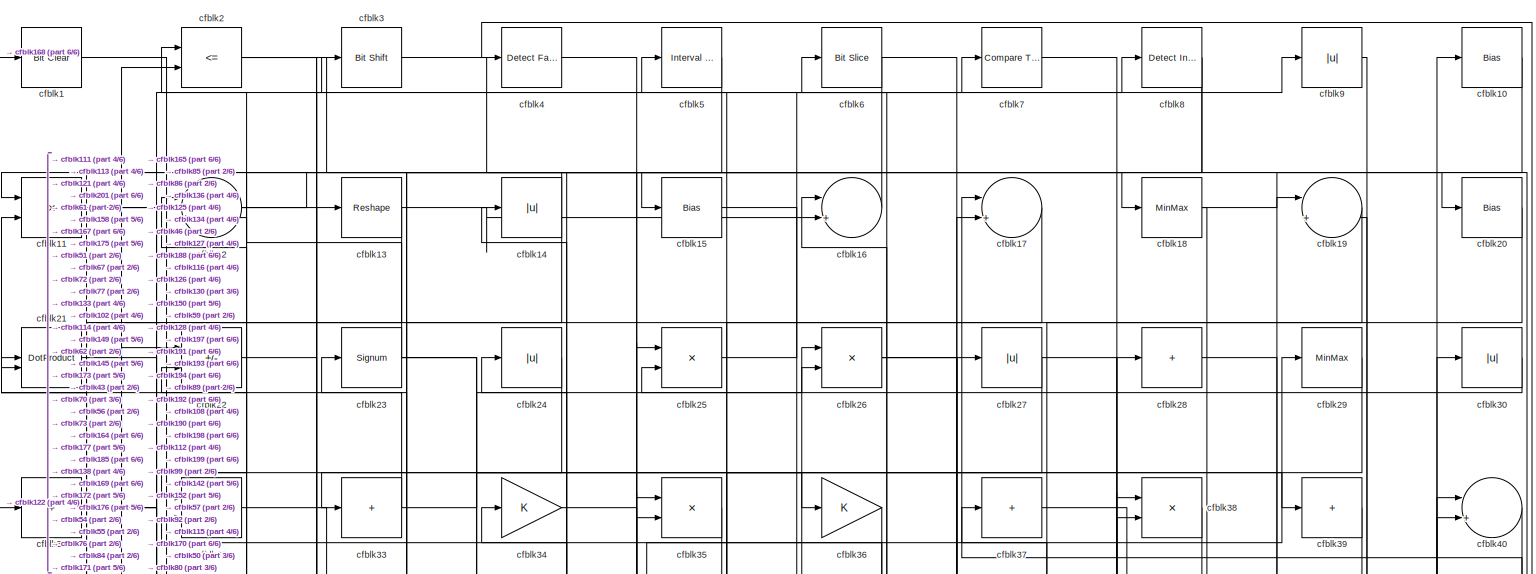
[diagram: root canvas - part 1/6, full width, top band]
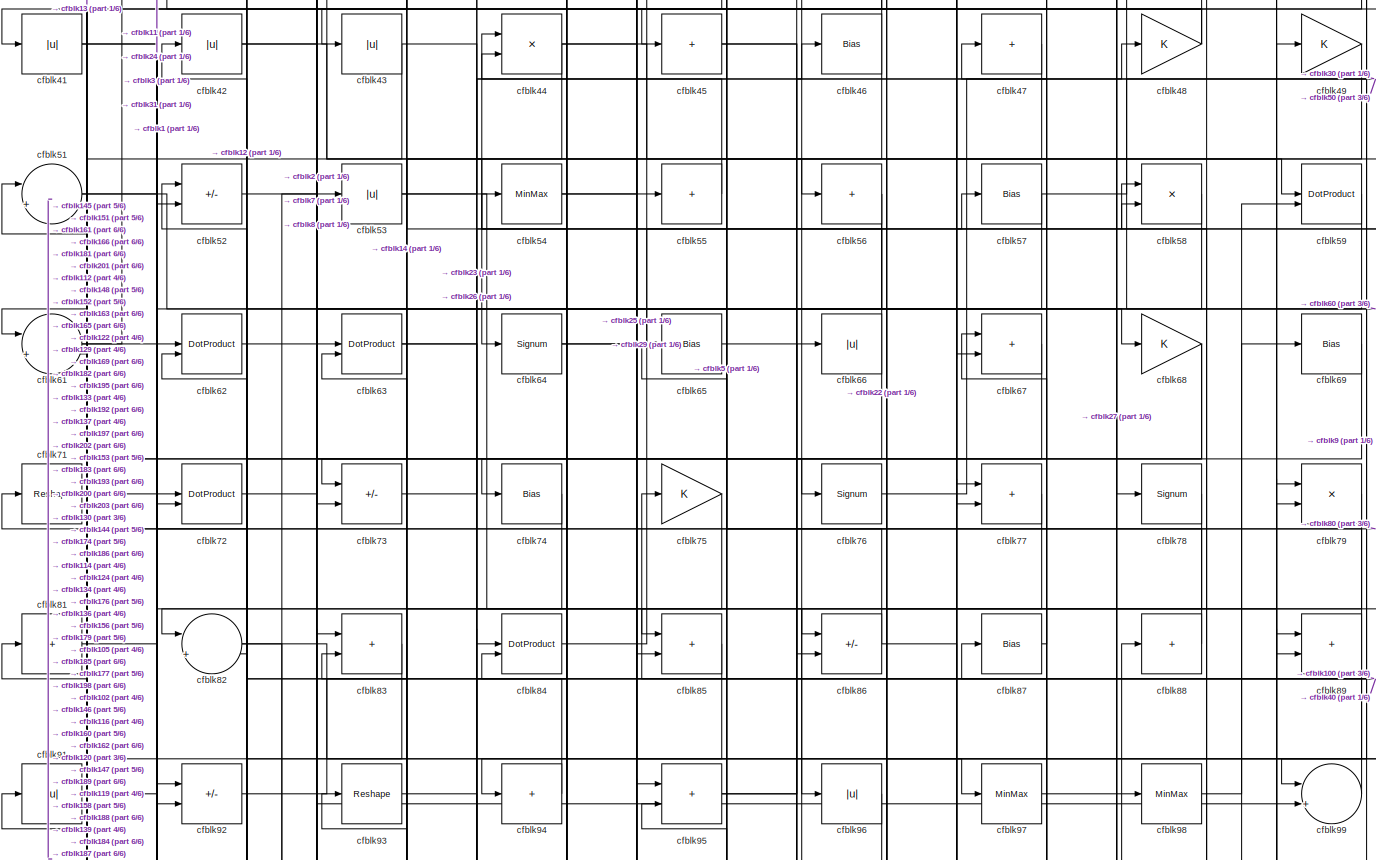
[diagram: root canvas - part 2/6, full width, middle band]
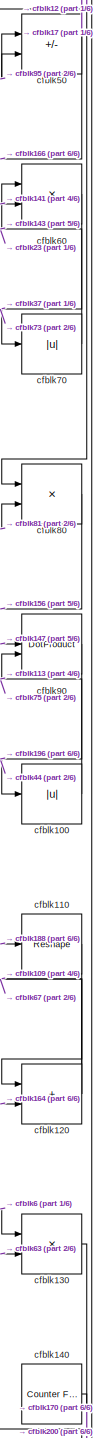
[diagram: root canvas - part 3/6, middle right region]
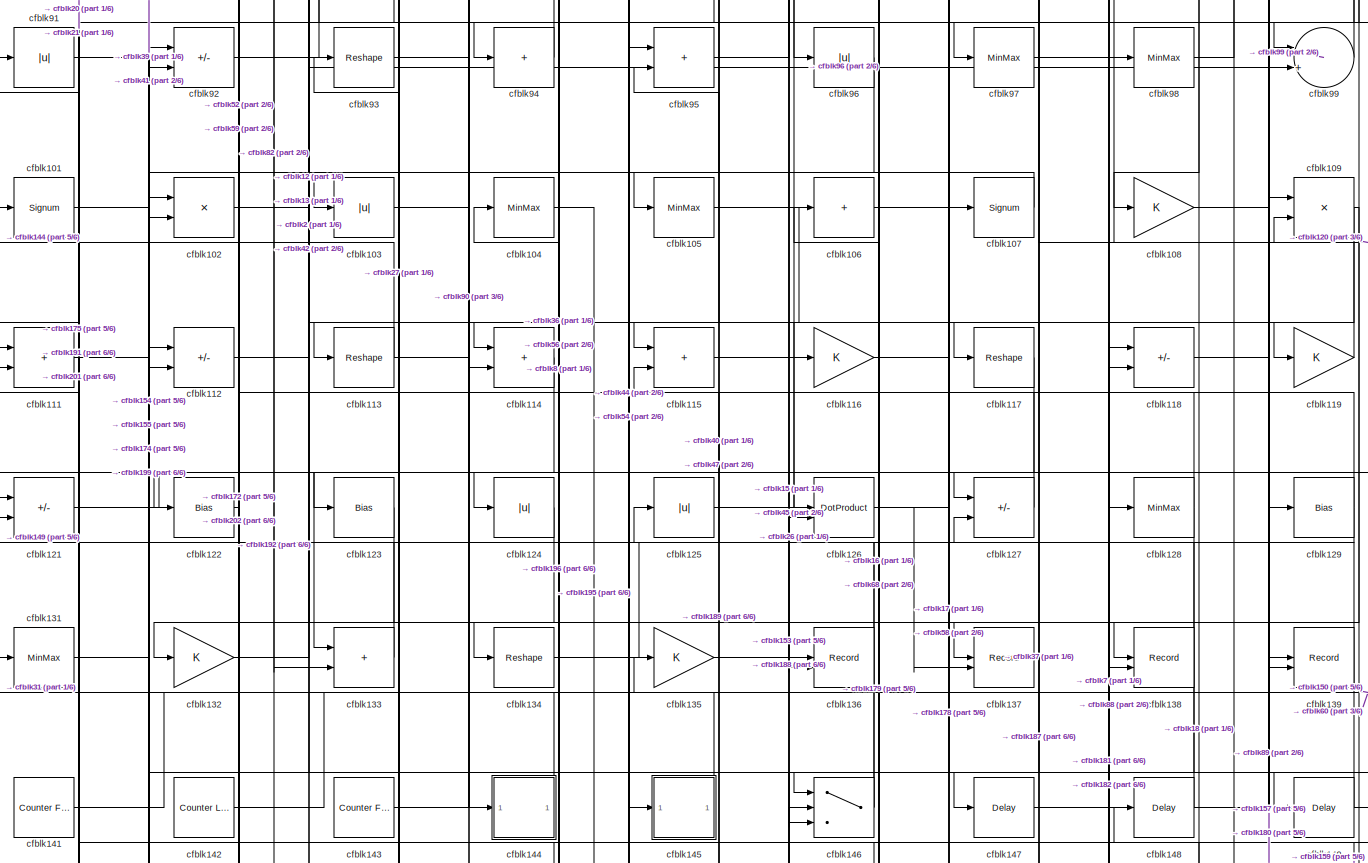
[diagram: root canvas - part 4/6, full width, middle band]
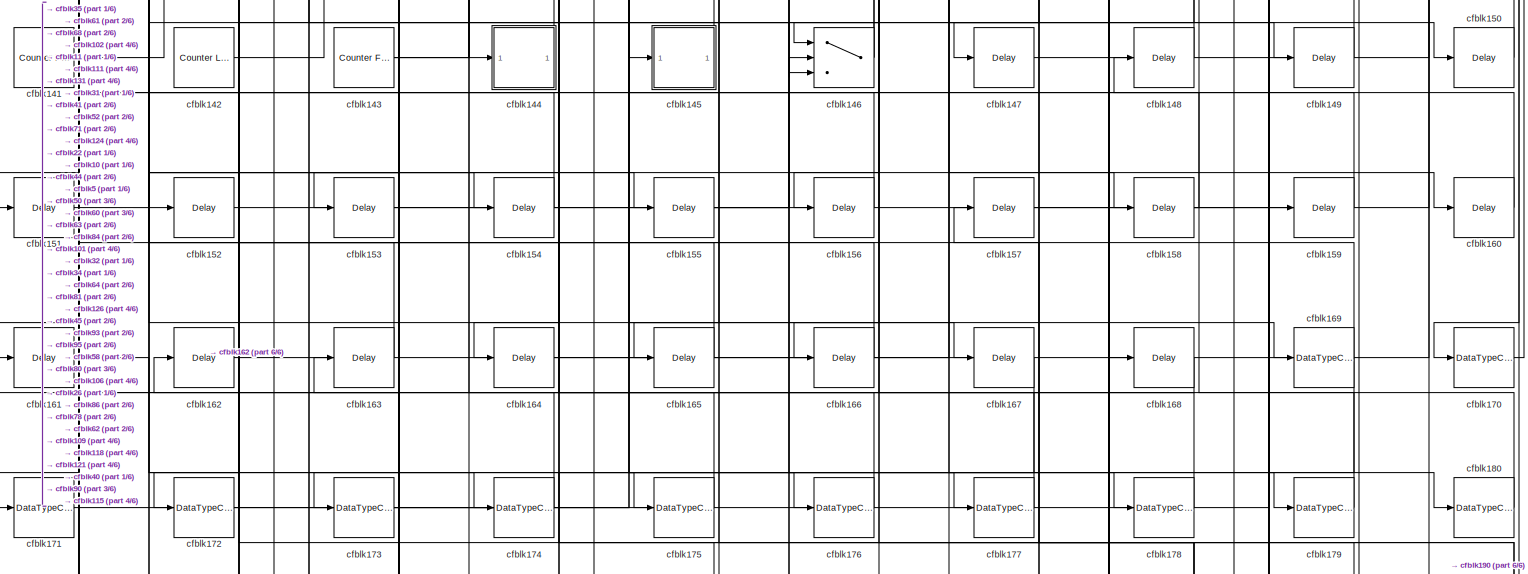
[diagram: root canvas - part 5/6, full width, bottom band]
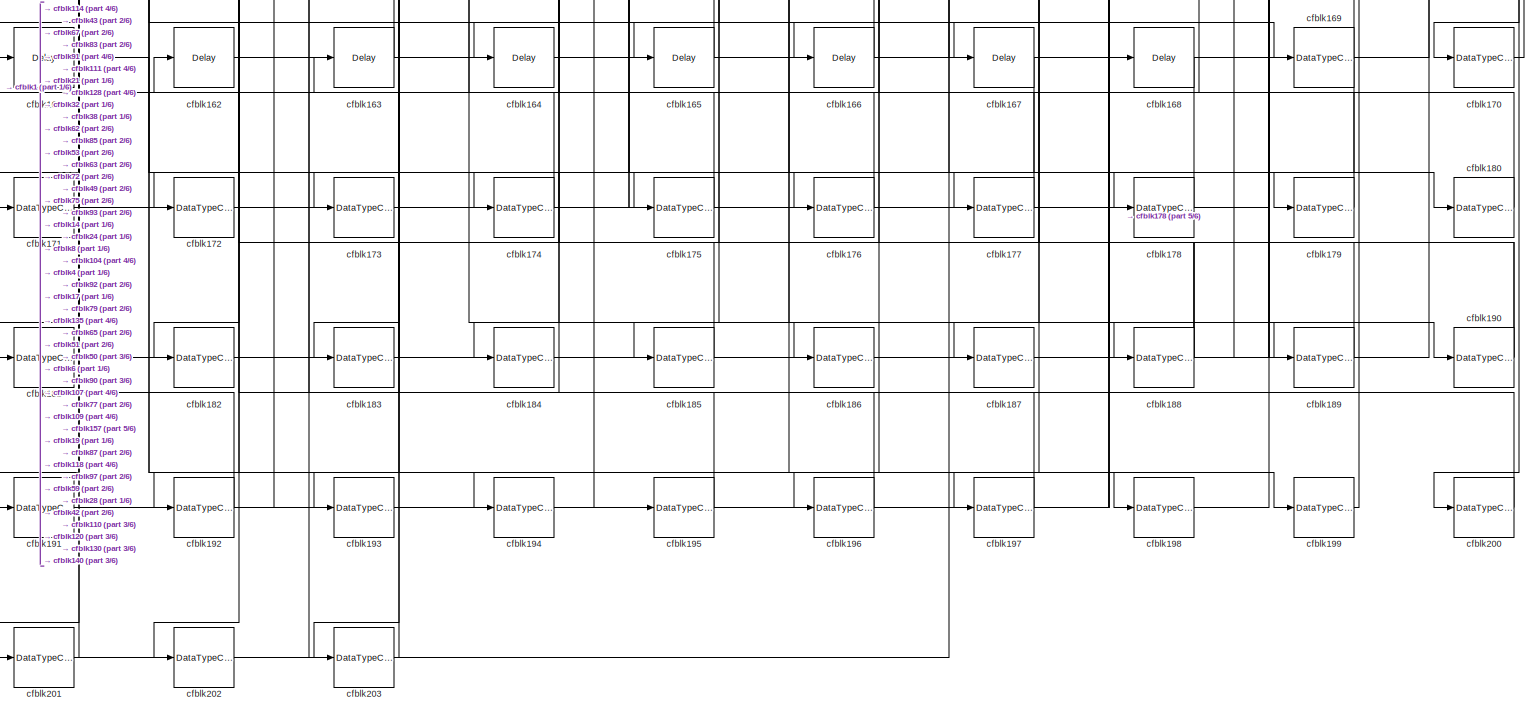
[diagram: root canvas - part 6/6, full width, bottom band]
MODEL slx_52d955ae7c32
KIND model
CONFIG AbsTol = auto
CONFIG EnableMultiTasking = off
CONFIG FixedStep = auto
CONFIG MaxStep = auto
CONFIG MinStep = auto
CONFIG RelTol = 1e-3
CONFIG SampleTimeConstraint = Unconstrained
CONFIG SolverName = VariableStepAuto
CONFIG StartTime = 0.0
CONFIG StopTime = 10.0
BLOCK [Reference] cfblk1  REF=simulink/Logic and Bit
Operations/Bit Clear
  LibrarySourceBlock = hdlsllib/Logic and Bit\nOperations/Bit Clear
  SourceBlock = simulink/Logic and Bit\nOperations/Bit Clear
  SourceType = Bit Clear
BLOCK [Bias] cfblk10
  Bias = 0.0
  SaturateOnIntegerOverflow = off
BLOCK [Abs] cfblk100
  SaturateOnIntegerOverflow = off
BLOCK [Signum] cfblk101
BLOCK [Product] cfblk102
  Inputs = */
  RndMeth = Zero
  SaturateOnIntegerOverflow = on
BLOCK [Abs] cfblk103
  SaturateOnIntegerOverflow = off
BLOCK [MinMax] cfblk104
BLOCK [MinMax] cfblk105
BLOCK [Sum] cfblk106
  IconShape = rectangular
  Inputs = +
BLOCK [Signum] cfblk107
BLOCK [Gain] cfblk108
BLOCK [Product] cfblk109
  Inputs = */
  RndMeth = Zero
  SaturateOnIntegerOverflow = on
BLOCK [Product] cfblk11
  Inputs = */
  RndMeth = Zero
  SaturateOnIntegerOverflow = on
BLOCK [Reshape] cfblk110
BLOCK [Sum] cfblk111
  IconShape = rectangular
BLOCK [Sum] cfblk112
  IconShape = rectangular
  Inputs = +-
BLOCK [Reshape] cfblk113
BLOCK [Sum] cfblk114
  IconShape = rectangular
BLOCK [Sum] cfblk115
  IconShape = rectangular
BLOCK [Gain] cfblk116
BLOCK [Reshape] cfblk117
BLOCK [Sum] cfblk118
  IconShape = rectangular
  Inputs = +-
BLOCK [Gain] cfblk119
BLOCK [Sum] cfblk12
  Inputs = |++
BLOCK [Sum] cfblk120
  IconShape = rectangular
BLOCK [Sum] cfblk121
  IconShape = rectangular
  Inputs = +-
BLOCK [Bias] cfblk122
  Bias = 0.0
  SaturateOnIntegerOverflow = off
BLOCK [Bias] cfblk123
  Bias = 0.0
  SaturateOnIntegerOverflow = off
BLOCK [Abs] cfblk124
  SaturateOnIntegerOverflow = off
BLOCK [Abs] cfblk125
  SaturateOnIntegerOverflow = off
BLOCK [DotProduct] cfblk126
  OutDataTypeStr = Inherit: Inherit via internal rule
BLOCK [Sum] cfblk127
  IconShape = rectangular
  Inputs = +-
BLOCK [MinMax] cfblk128
BLOCK [Bias] cfblk129
  Bias = 0.0
  SaturateOnIntegerOverflow = off
BLOCK [Reshape] cfblk13
BLOCK [Product] cfblk130
  Inputs = */
  RndMeth = Zero
  SaturateOnIntegerOverflow = on
BLOCK [MinMax] cfblk131
BLOCK [Gain] cfblk132
BLOCK [Sum] cfblk133
  IconShape = rectangular
BLOCK [Reshape] cfblk134
BLOCK [Gain] cfblk135
BLOCK [Record] cfblk136
  CompatibilityTag = XY
  FileSettingsInternal = {"entries":[{"content":{"excelSettings":{"content":{},"type":"Streamout.ExcelSettings"}},"type":"Streamout.FileSettingStorage","uuid":""}],"packageUris":["http:\/\/schema.mathworks.com\/mf0\/streamout_blocks\/R2020a"],"version":"1.0"}  <repeated x4 — deduplicated; at blocks: cfblk136, cfblk137, cfblk138, cfblk139>
  Layout = [1 1]
  SignalsInternal = {"entries":[{"content":{"signals":[{"content":{"blockPath":[],"dimensions":[1],"domain":"","lineColor":"#a2142f","plots":[1],"port":1,"signalID":6125,"signalName":"XY Graph:1"},"type":"RecordBlkView.Signal","uuid":""},{"content":{"blockPath":[],"dimensions":[1],"domain":"","lineColor":"#139fff","plots":[1],"port":2,"signalID":6128,"signalName":"XY Graph:2"},"type":"RecordBlkView.Signal","uuid":""}...<+146ch>
  VisualizationBindings = {"xyplotplugin":{"info":[{"series":[{"bindingParametersList":[{"parameter":"X-Axis","signalID":6125,"signalName":"XY Graph:1"},{"parameter":"Y-Axis","signalID":6128,"signalName":"XY Graph:2"}],"seriesID":37174}],"subplotID":1}]}}
  st = -1
BLOCK [Record] cfblk137
  CompatibilityTag = XY
  Layout = [1 1]
  SignalsInternal = {"entries":[{"content":{"signals":[{"content":{"blockPath":[],"dimensions":[1],"domain":"","lineColor":"#a2142f","plots":[1],"port":1,"signalID":6133,"signalName":"XY Graph:1"},"type":"RecordBlkView.Signal","uuid":""},{"content":{"blockPath":[],"dimensions":[1],"domain":"","lineColor":"#139fff","plots":[1],"port":2,"signalID":6136,"signalName":"XY Graph:2"},"type":"RecordBlkView.Signal","uuid":""}...<+146ch>
  VisualizationBindings = {"xyplotplugin":{"info":[{"series":[{"bindingParametersList":[{"parameter":"X-Axis","signalID":6133,"signalName":"XY Graph:1"},{"parameter":"Y-Axis","signalID":6136,"signalName":"XY Graph:2"}],"seriesID":49207}],"subplotID":1}]}}
  st = -1
BLOCK [Record] cfblk138
  CompatibilityTag = XY
  Layout = [1 1]
  SignalsInternal = {"entries":[{"content":{"signals":[{"content":{"blockPath":[],"dimensions":[1],"domain":"","lineColor":"#a2142f","plots":[1],"port":1,"signalID":6141,"signalName":"XY Graph:1"},"type":"RecordBlkView.Signal","uuid":""},{"content":{"blockPath":[],"dimensions":[1],"domain":"","lineColor":"#139fff","plots":[1],"port":2,"signalID":6144,"signalName":"XY Graph:2"},"type":"RecordBlkView.Signal","uuid":""}...<+146ch>
  VisualizationBindings = {"xyplotplugin":{"info":[{"series":[{"bindingParametersList":[{"parameter":"X-Axis","signalID":6141,"signalName":"XY Graph:1"},{"parameter":"Y-Axis","signalID":6144,"signalName":"XY Graph:2"}],"seriesID":27354}],"subplotID":1}]}}
  st = -1
BLOCK [Record] cfblk139
  CompatibilityTag = XY
  Layout = [1 1]
  SignalsInternal = {"entries":[{"content":{"signals":[{"content":{"blockPath":[],"dimensions":[1],"domain":"","lineColor":"#a2142f","plots":[1],"port":1,"signalID":6149,"signalName":"XY Graph:1"},"type":"RecordBlkView.Signal","uuid":""},{"content":{"blockPath":[],"dimensions":[1],"domain":"","lineColor":"#139fff","plots":[1],"port":2,"signalID":6152,"signalName":"XY Graph:2"},"type":"RecordBlkView.Signal","uuid":""}...<+146ch>
  VisualizationBindings = {"xyplotplugin":{"info":[{"series":[{"bindingParametersList":[{"parameter":"X-Axis","signalID":6149,"signalName":"XY Graph:1"},{"parameter":"Y-Axis","signalID":6152,"signalName":"XY Graph:2"}],"seriesID":25762}],"subplotID":1}]}}
  st = -1
BLOCK [Abs] cfblk14
  SaturateOnIntegerOverflow = off
BLOCK [Reference] cfblk140  REF=hdlsllib/Sources/Counter
Free-Running
  SourceBlock = hdlsllib/Sources/Counter\nFree-Running
  SourceType = Counter Free-Running
BLOCK [Reference] cfblk141  REF=hdlsllib/Sources/Counter
Free-Running
  SourceBlock = hdlsllib/Sources/Counter\nFree-Running
  SourceType = Counter Free-Running
BLOCK [Reference] cfblk142  REF=hdlsllib/Sources/Counter
Limited
  SourceBlock = hdlsllib/Sources/Counter\nLimited
  SourceType = Counter Limited
BLOCK [Reference] cfblk143  REF=hdlsllib/Sources/Counter
Free-Running
  SourceBlock = hdlsllib/Sources/Counter\nFree-Running
  SourceType = Counter Free-Running
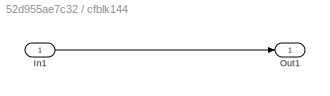
BLOCK [SubSystem] cfblk144
  LibrarySourceBlock = hdlsllib/Ports &\nSubsystems/Subsystem
BLOCK [Inport] cfblk144/In1
BLOCK [Outport] cfblk144/Out1
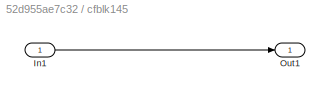
BLOCK [SubSystem] cfblk145
  LibrarySourceBlock = hdlsllib/Ports &\nSubsystems/Subsystem
BLOCK [Inport] cfblk145/In1
BLOCK [Outport] cfblk145/Out1
BLOCK [Switch] cfblk146
  InputSameDT = off
  SaturateOnIntegerOverflow = off
BLOCK [Delay] cfblk147
  InputPortMap = u0
  SampleTime = 1
BLOCK [Delay] cfblk148
  InputPortMap = u0
  SampleTime = 1
BLOCK [Delay] cfblk149
  InputPortMap = u0
  SampleTime = 1
BLOCK [Bias] cfblk15
  Bias = 0.0
  SaturateOnIntegerOverflow = off
BLOCK [Delay] cfblk150
  InputPortMap = u0
  SampleTime = 1
BLOCK [Delay] cfblk151
  InputPortMap = u0
  SampleTime = 1
BLOCK [Delay] cfblk152
  InputPortMap = u0
  SampleTime = 1
BLOCK [Delay] cfblk153
  InputPortMap = u0
  SampleTime = 1
BLOCK [Delay] cfblk154
  InputPortMap = u0
  SampleTime = 1
BLOCK [Delay] cfblk155
  InputPortMap = u0
  SampleTime = 1
BLOCK [Delay] cfblk156
  InputPortMap = u0
  SampleTime = 1
BLOCK [Delay] cfblk157
  InputPortMap = u0
  SampleTime = 1
BLOCK [Delay] cfblk158
  InputPortMap = u0
  SampleTime = 1
BLOCK [Delay] cfblk159
  InputPortMap = u0
  SampleTime = 1
BLOCK [Sum] cfblk16
  Inputs = |++
BLOCK [Delay] cfblk160
  InputPortMap = u0
  SampleTime = 1
BLOCK [Delay] cfblk161
  InputPortMap = u0
  SampleTime = 1
BLOCK [Delay] cfblk162
  InputPortMap = u0
  SampleTime = 1
BLOCK [Delay] cfblk163
  InputPortMap = u0
  SampleTime = 1
BLOCK [Delay] cfblk164
  InputPortMap = u0
  SampleTime = 1
BLOCK [Delay] cfblk165
  InputPortMap = u0
  SampleTime = 1
BLOCK [Delay] cfblk166
  InputPortMap = u0
  SampleTime = 1
BLOCK [Delay] cfblk167
  InputPortMap = u0
  SampleTime = 1
BLOCK [Delay] cfblk168
  InputPortMap = u0
  SampleTime = 1
BLOCK [DataTypeConversion] cfblk169
  RndMeth = Floor
  SaturateOnIntegerOverflow = off
BLOCK [Sum] cfblk17
  Inputs = |++
BLOCK [DataTypeConversion] cfblk170
  OutDataTypeStr = uint8
  RndMeth = Floor
  SaturateOnIntegerOverflow = off
BLOCK [DataTypeConversion] cfblk171
  OutDataTypeStr = uint8
  RndMeth = Floor
  SaturateOnIntegerOverflow = off
BLOCK [DataTypeConversion] cfblk172
  OutDataTypeStr = uint8
  RndMeth = Floor
  SaturateOnIntegerOverflow = off
BLOCK [DataTypeConversion] cfblk173
  OutDataTypeStr = uint8
  RndMeth = Floor
  SaturateOnIntegerOverflow = off
BLOCK [DataTypeConversion] cfblk174
  OutDataTypeStr = uint8
  RndMeth = Floor
  SaturateOnIntegerOverflow = off
BLOCK [DataTypeConversion] cfblk175
  OutDataTypeStr = uint8
  RndMeth = Floor
  SaturateOnIntegerOverflow = off
BLOCK [DataTypeConversion] cfblk176
  OutDataTypeStr = uint8
  RndMeth = Floor
  SaturateOnIntegerOverflow = off
BLOCK [DataTypeConversion] cfblk177
  OutDataTypeStr = uint8
  RndMeth = Floor
  SaturateOnIntegerOverflow = off
BLOCK [DataTypeConversion] cfblk178
  OutDataTypeStr = uint8
  RndMeth = Floor
  SaturateOnIntegerOverflow = off
BLOCK [DataTypeConversion] cfblk179
  OutDataTypeStr = uint8
  RndMeth = Floor
  SaturateOnIntegerOverflow = off
BLOCK [MinMax] cfblk18
BLOCK [DataTypeConversion] cfblk180
  OutDataTypeStr = uint8
  RndMeth = Floor
  SaturateOnIntegerOverflow = off
BLOCK [DataTypeConversion] cfblk181
  OutDataTypeStr = uint8
  RndMeth = Floor
  SaturateOnIntegerOverflow = off
BLOCK [DataTypeConversion] cfblk182
  OutDataTypeStr = uint8
  RndMeth = Floor
  SaturateOnIntegerOverflow = off
BLOCK [DataTypeConversion] cfblk183
  OutDataTypeStr = uint8
  RndMeth = Floor
  SaturateOnIntegerOverflow = off
BLOCK [DataTypeConversion] cfblk184
  OutDataTypeStr = uint8
  RndMeth = Floor
  SaturateOnIntegerOverflow = off
BLOCK [DataTypeConversion] cfblk185
  OutDataTypeStr = uint8
  RndMeth = Floor
  SaturateOnIntegerOverflow = off
BLOCK [DataTypeConversion] cfblk186
  OutDataTypeStr = uint8
  RndMeth = Floor
  SaturateOnIntegerOverflow = off
BLOCK [DataTypeConversion] cfblk187
  OutDataTypeStr = uint8
  RndMeth = Floor
  SaturateOnIntegerOverflow = off
BLOCK [DataTypeConversion] cfblk188
  RndMeth = Floor
  SaturateOnIntegerOverflow = off
BLOCK [DataTypeConversion] cfblk189
  OutDataTypeStr = uint8
  RndMeth = Floor
  SaturateOnIntegerOverflow = off
BLOCK [Sum] cfblk19
  Inputs = |++
BLOCK [DataTypeConversion] cfblk190
  RndMeth = Floor
  SaturateOnIntegerOverflow = off
BLOCK [DataTypeConversion] cfblk191
  OutDataTypeStr = uint8
  RndMeth = Floor
  SaturateOnIntegerOverflow = off
BLOCK [DataTypeConversion] cfblk192
  RndMeth = Floor
  SaturateOnIntegerOverflow = off
BLOCK [DataTypeConversion] cfblk193
  OutDataTypeStr = uint8
  RndMeth = Floor
  SaturateOnIntegerOverflow = off
BLOCK [DataTypeConversion] cfblk194
  OutDataTypeStr = uint8
  RndMeth = Floor
  SaturateOnIntegerOverflow = off
BLOCK [DataTypeConversion] cfblk195
  RndMeth = Floor
  SaturateOnIntegerOverflow = off
BLOCK [DataTypeConversion] cfblk196
  OutDataTypeStr = uint8
  RndMeth = Floor
  SaturateOnIntegerOverflow = off
BLOCK [DataTypeConversion] cfblk197
  OutDataTypeStr = uint8
  RndMeth = Floor
  SaturateOnIntegerOverflow = off
BLOCK [DataTypeConversion] cfblk198
  OutDataTypeStr = uint8
  RndMeth = Floor
  SaturateOnIntegerOverflow = off
BLOCK [DataTypeConversion] cfblk199
  OutDataTypeStr = uint8
  RndMeth = Floor
  SaturateOnIntegerOverflow = off
BLOCK [RelationalOperator] cfblk2
  InputSameDT = off
  Operator = <=
  OutDataTypeStr = boolean
BLOCK [Bias] cfblk20
  Bias = 0.0
  SaturateOnIntegerOverflow = off
BLOCK [DataTypeConversion] cfblk200
  OutDataTypeStr = uint8
  RndMeth = Floor
  SaturateOnIntegerOverflow = off
BLOCK [DataTypeConversion] cfblk201
  RndMeth = Floor
  SaturateOnIntegerOverflow = off
BLOCK [DataTypeConversion] cfblk202
  OutDataTypeStr = uint8
  RndMeth = Floor
  SaturateOnIntegerOverflow = off
BLOCK [DataTypeConversion] cfblk203
  OutDataTypeStr = uint8
  RndMeth = Floor
  SaturateOnIntegerOverflow = off
BLOCK [DotProduct] cfblk21
  OutDataTypeStr = Inherit: Inherit via internal rule
BLOCK [Sum] cfblk22
  IconShape = rectangular
  Inputs = +-
BLOCK [Signum] cfblk23
BLOCK [Abs] cfblk24
  SaturateOnIntegerOverflow = off
BLOCK [Product] cfblk25
  Inputs = */
  RndMeth = Zero
  SaturateOnIntegerOverflow = on
BLOCK [Product] cfblk26
  Inputs = */
  RndMeth = Zero
  SaturateOnIntegerOverflow = on
BLOCK [Abs] cfblk27
  SaturateOnIntegerOverflow = off
BLOCK [Sum] cfblk28
  IconShape = rectangular
  Inputs = +
BLOCK [MinMax] cfblk29
BLOCK [Reference] cfblk3  REF=hdlsllib/Logic and Bit
Operations/Bit Shift
  SourceBlock = hdlsllib/Logic and Bit\nOperations/Bit Shift
  SourceType = Bit Shift
BLOCK [Abs] cfblk30
  SaturateOnIntegerOverflow = off
BLOCK [Sum] cfblk31
  IconShape = rectangular
  Inputs = +
BLOCK [Product] cfblk32
  Inputs = */
  RndMeth = Zero
  SaturateOnIntegerOverflow = on
BLOCK [Sum] cfblk33
  IconShape = rectangular
  Inputs = +
BLOCK [Gain] cfblk34
BLOCK [Product] cfblk35
  Inputs = */
  RndMeth = Zero
  SaturateOnIntegerOverflow = on
BLOCK [Gain] cfblk36
BLOCK [Sum] cfblk37
  IconShape = rectangular
  Inputs = +
BLOCK [Product] cfblk38
  Inputs = */
  RndMeth = Zero
  SaturateOnIntegerOverflow = on
BLOCK [Sum] cfblk39
  IconShape = rectangular
  Inputs = +
BLOCK [Reference] cfblk4  REF=hdlsllib/Logic and Bit
Operations/Detect Fall
Negative
  SourceBlock = hdlsllib/Logic and Bit\nOperations/Detect Fall\nNegative
  SourceType = Detect Fall Negative
BLOCK [Sum] cfblk40
  Inputs = |++
BLOCK [Abs] cfblk41
  SaturateOnIntegerOverflow = off
BLOCK [Abs] cfblk42
  SaturateOnIntegerOverflow = off
BLOCK [Abs] cfblk43
  SaturateOnIntegerOverflow = off
BLOCK [Product] cfblk44
  Inputs = */
  RndMeth = Zero
  SaturateOnIntegerOverflow = on
BLOCK [Sum] cfblk45
  IconShape = rectangular
  Inputs = +
BLOCK [Bias] cfblk46
  Bias = 0.0
  SaturateOnIntegerOverflow = off
BLOCK [Sum] cfblk47
  IconShape = rectangular
  Inputs = +
BLOCK [Gain] cfblk48
BLOCK [Gain] cfblk49
BLOCK [Reference] cfblk5  REF=hdlsllib/Logic and Bit
Operations/Interval Test
  SourceBlock = hdlsllib/Logic and Bit\nOperations/Interval Test
  SourceType = Interval Test
BLOCK [Sum] cfblk50
  IconShape = rectangular
  Inputs = +-
BLOCK [Sum] cfblk51
  Inputs = |++
BLOCK [Sum] cfblk52
  IconShape = rectangular
  Inputs = +-
BLOCK [Abs] cfblk53
  SaturateOnIntegerOverflow = off
BLOCK [MinMax] cfblk54
BLOCK [Sum] cfblk55
  IconShape = rectangular
  Inputs = +
BLOCK [Sum] cfblk56
  IconShape = rectangular
  Inputs = +
BLOCK [Bias] cfblk57
  Bias = 0.0
  SaturateOnIntegerOverflow = off
BLOCK [Product] cfblk58
  Inputs = */
  RndMeth = Zero
  SaturateOnIntegerOverflow = on
BLOCK [DotProduct] cfblk59
  OutDataTypeStr = Inherit: Inherit via internal rule
BLOCK [Reference] cfblk6  REF=hdlsllib/Logic and Bit
Operations/Bit Slice
  SourceBlock = hdlsllib/Logic and Bit\nOperations/Bit Slice
  SourceType = Bit Slice
BLOCK [Product] cfblk60
  Inputs = */
  RndMeth = Zero
  SaturateOnIntegerOverflow = on
BLOCK [Sum] cfblk61
  Inputs = |++
BLOCK [DotProduct] cfblk62
  OutDataTypeStr = Inherit: Inherit via internal rule
BLOCK [DotProduct] cfblk63
  OutDataTypeStr = Inherit: Inherit via internal rule
BLOCK [Signum] cfblk64
BLOCK [Bias] cfblk65
  Bias = 0.0
  SaturateOnIntegerOverflow = off
BLOCK [Abs] cfblk66
  SaturateOnIntegerOverflow = off
BLOCK [Sum] cfblk67
  IconShape = rectangular
BLOCK [Gain] cfblk68
BLOCK [Bias] cfblk69
  Bias = 0.0
  SaturateOnIntegerOverflow = off
BLOCK [Reference] cfblk7  REF=hdlsllib/Logic and Bit
Operations/Compare
To Constant
  SourceBlock = hdlsllib/Logic and Bit\nOperations/Compare\nTo Constant
  SourceType = Compare To Constant
BLOCK [Abs] cfblk70
  SaturateOnIntegerOverflow = off
BLOCK [Reshape] cfblk71
BLOCK [DotProduct] cfblk72
  OutDataTypeStr = Inherit: Inherit via internal rule
BLOCK [Sum] cfblk73
  IconShape = rectangular
  Inputs = +-
BLOCK [Bias] cfblk74
  Bias = 0.0
  SaturateOnIntegerOverflow = off
BLOCK [Gain] cfblk75
BLOCK [Signum] cfblk76
BLOCK [Sum] cfblk77
  IconShape = rectangular
BLOCK [Signum] cfblk78
BLOCK [Product] cfblk79
  Inputs = */
  RndMeth = Zero
  SaturateOnIntegerOverflow = on
BLOCK [Reference] cfblk8  REF=simulink/Logic and Bit
Operations/Detect
Increase
  LibrarySourceBlock = hdlsllib/Logic and Bit\nOperations/Detect\nIncrease
  SourceBlock = simulink/Logic and Bit\nOperations/Detect\nIncrease
  SourceType = Detect Increase
BLOCK [Product] cfblk80
  Inputs = */
  RndMeth = Zero
  SaturateOnIntegerOverflow = on
BLOCK [Sum] cfblk81
  IconShape = rectangular
  Inputs = +
BLOCK [Sum] cfblk82
  Inputs = |++
BLOCK [Sum] cfblk83
  IconShape = rectangular
BLOCK [DotProduct] cfblk84
  OutDataTypeStr = Inherit: Inherit via internal rule
BLOCK [Sum] cfblk85
  IconShape = rectangular
BLOCK [Sum] cfblk86
  IconShape = rectangular
  Inputs = +-
BLOCK [Bias] cfblk87
  Bias = 0.0
  SaturateOnIntegerOverflow = off
BLOCK [Sum] cfblk88
  IconShape = rectangular
  Inputs = +
BLOCK [Sum] cfblk89
  IconShape = rectangular
BLOCK [Abs] cfblk9
  SaturateOnIntegerOverflow = off
BLOCK [DotProduct] cfblk90
  OutDataTypeStr = Inherit: Inherit via internal rule
BLOCK [Abs] cfblk91
  SaturateOnIntegerOverflow = off
BLOCK [Sum] cfblk92
  IconShape = rectangular
  Inputs = +-
BLOCK [Reshape] cfblk93
BLOCK [Sum] cfblk94
  IconShape = rectangular
  Inputs = +
BLOCK [Sum] cfblk95
  IconShape = rectangular
BLOCK [Abs] cfblk96
  SaturateOnIntegerOverflow = off
BLOCK [MinMax] cfblk97
BLOCK [MinMax] cfblk98
BLOCK [Sum] cfblk99
  Inputs = |++
LINE cfblk100:1 -> cfblk75:1
LINE cfblk101:1 -> cfblk155:1
LINE cfblk102:1 -> cfblk13:1
LINE cfblk103:1 -> cfblk119:1
LINE cfblk104:1 -> cfblk195:1
LINE cfblk105:1 -> cfblk117:1
LINE cfblk106:1 -> cfblk178:1
LINE cfblk107:1 -> cfblk103:1
LINE cfblk108:1 -> cfblk129:1
NET cfblk109:1 -> cfblk138:1, cfblk187:1
LINE cfblk10:1 -> cfblk32:1
LINE cfblk110:1 -> cfblk120:1
NET cfblk111:1 -> cfblk154:1, cfblk199:1
LINE cfblk112:1 -> cfblk99:2
NET cfblk113:1 -> cfblk21:1, cfblk90:2
LINE cfblk114:1 -> cfblk191:1
LINE cfblk115:1 -> cfblk126:1
NET cfblk116:1 -> cfblk17:2, cfblk58:1
LINE cfblk117:1 -> cfblk133:1
LINE cfblk118:1 -> cfblk180:1
LINE cfblk119:1 -> cfblk88:1
NET cfblk11:1 -> cfblk158:1, cfblk86:1
NET cfblk120:1 -> cfblk109:2, cfblk67:1
LINE cfblk121:1 -> cfblk123:1
LINE cfblk122:1 -> cfblk31:1
LINE cfblk123:1 -> cfblk132:1
LINE cfblk124:1 -> cfblk172:1
LINE cfblk125:1 -> cfblk26:1
NET cfblk126:1 -> cfblk137:2, cfblk27:1
LINE cfblk127:1 -> cfblk16:1
NET cfblk128:1 -> cfblk202:1, cfblk37:1
NET cfblk129:1 -> cfblk127:2, cfblk52:1
NET cfblk12:1 -> cfblk114:2, cfblk80:1
LINE cfblk130:1 -> cfblk170:1
LINE cfblk131:1 -> cfblk174:1
LINE cfblk132:1 -> cfblk125:1
LINE cfblk133:1 -> cfblk12:1
NET cfblk134:1 -> cfblk54:1, cfblk89:1
LINE cfblk135:1 -> cfblk188:1
NET cfblk13:1 -> cfblk16:2, cfblk61:1
LINE cfblk140:1 -> cfblk200:1
LINE cfblk141:1 -> cfblk60:2
LINE cfblk142:1 -> cfblk10:1
NET cfblk143:1 -> cfblk50:1, cfblk60:1
LINE cfblk144/In1:1 -> cfblk144/Out1:1
LINE cfblk144:1 -> cfblk101:1
LINE cfblk145/In1:1 -> cfblk145/Out1:1
LINE cfblk145:1 -> cfblk81:1
NET cfblk146:1 -> cfblk93:1, cfblk95:2
LINE cfblk147:1 -> cfblk90:1
LINE cfblk148:1 -> cfblk62:1
LINE cfblk149:1 -> cfblk121:2
NET cfblk14:1 -> cfblk11:1, cfblk43:1
LINE cfblk150:1 -> cfblk115:2
LINE cfblk151:1 -> cfblk52:2
LINE cfblk152:1 -> cfblk40:1
LINE cfblk153:1 -> cfblk126:2
LINE cfblk154:1 -> cfblk102:1
LINE cfblk155:1 -> cfblk146:2
LINE cfblk156:1 -> cfblk95:1
LINE cfblk157:1 -> cfblk109:1
LINE cfblk158:1 -> cfblk58:2
LINE cfblk159:1 -> cfblk111:2
LINE cfblk15:1 -> cfblk136:1
LINE cfblk160:1 -> cfblk61:2
LINE cfblk161:1 -> cfblk194:1
LINE cfblk162:1 -> cfblk77:1
LINE cfblk163:1 -> cfblk72:1
LINE cfblk164:1 -> cfblk120:2
LINE cfblk165:1 -> cfblk92:1
LINE cfblk166:1 -> cfblk51:2
LINE cfblk167:1 -> cfblk203:1
LINE cfblk168:1 -> cfblk1:1
NET cfblk169:1 -> cfblk184:1, cfblk42:1
LINE cfblk16:1 -> cfblk15:1
LINE cfblk170:1 -> cfblk4:1
LINE cfblk171:1 -> cfblk159:1
LINE cfblk172:1 -> cfblk35:1
LINE cfblk173:1 -> cfblk35:2
LINE cfblk174:1 -> cfblk84:1
LINE cfblk175:1 -> cfblk131:1
LINE cfblk176:1 -> cfblk84:2
LINE cfblk177:1 -> cfblk34:1
LINE cfblk178:1 -> cfblk162:1
LINE cfblk179:1 -> cfblk106:1
LINE cfblk17:1 -> cfblk165:1
LINE cfblk180:1 -> cfblk148:1
LINE cfblk181:1 -> cfblk118:1
LINE cfblk182:1 -> cfblk118:2
LINE cfblk183:1 -> cfblk163:1
LINE cfblk184:1 -> cfblk49:1
LINE cfblk185:1 -> cfblk24:1
LINE cfblk186:1 -> cfblk79:1
LINE cfblk187:1 -> cfblk79:2
NET cfblk188:1 -> cfblk110:1, cfblk32:2, cfblk59:2, cfblk6:1, cfblk87:1
LINE cfblk189:1 -> cfblk135:1
NET cfblk18:1 -> cfblk108:1, cfblk20:1
NET cfblk190:1 -> cfblk14:1, cfblk157:1
LINE cfblk191:1 -> cfblk28:1
NET cfblk192:1 -> cfblk53:1, cfblk91:1
LINE cfblk193:1 -> cfblk38:1
LINE cfblk194:1 -> cfblk38:2
NET cfblk195:1 -> cfblk168:1, cfblk62:2
LINE cfblk196:1 -> cfblk104:1
LINE cfblk197:1 -> cfblk63:1
LINE cfblk198:1 -> cfblk19:1
LINE cfblk199:1 -> cfblk19:2
LINE cfblk19:1 -> cfblk197:1
LINE cfblk1:1 -> cfblk77:2
LINE cfblk200:1 -> cfblk63:2
NET cfblk201:1 -> cfblk107:1, cfblk21:2
LINE cfblk202:1 -> cfblk83:1
LINE cfblk203:1 -> cfblk83:2
LINE cfblk20:1 -> cfblk121:1
LINE cfblk21:1 -> cfblk167:1
LINE cfblk22:1 -> cfblk149:1
NET cfblk23:1 -> cfblk2:1, cfblk39:1, cfblk56:1
LINE cfblk24:1 -> cfblk72:2
LINE cfblk25:1 -> cfblk9:1
NET cfblk26:1 -> cfblk150:1, cfblk59:1
NET cfblk27:1 -> cfblk113:1, cfblk89:2
LINE cfblk28:1 -> cfblk190:1
LINE cfblk29:1 -> cfblk85:1
NET cfblk2:1 -> cfblk138:2, cfblk55:1, cfblk76:1
LINE cfblk30:1 -> cfblk25:2
NET cfblk31:1 -> cfblk175:1, cfblk22:1, cfblk67:2
LINE cfblk32:1 -> cfblk145:1
NET cfblk33:1 -> cfblk11:2, cfblk36:1
LINE cfblk34:1 -> cfblk176:1
LINE cfblk35:1 -> cfblk171:1
LINE cfblk36:1 -> cfblk134:1
LINE cfblk37:1 -> cfblk70:1
LINE cfblk38:1 -> cfblk192:1
LINE cfblk39:1 -> cfblk112:2
LINE cfblk3:1 -> cfblk18:1
LINE cfblk40:1 -> cfblk115:1
NET cfblk41:1 -> cfblk112:1, cfblk146:3
NET cfblk42:1 -> cfblk137:1, cfblk64:1
NET cfblk43:1 -> cfblk161:1, cfblk85:2
NET cfblk44:1 -> cfblk100:1, cfblk139:1, cfblk153:1
NET cfblk45:1 -> cfblk139:2, cfblk177:1
NET cfblk46:1 -> cfblk22:2, cfblk74:1
LINE cfblk47:1 -> cfblk105:1
NET cfblk48:1 -> cfblk41:1, cfblk45:1
LINE cfblk49:1 -> cfblk183:1
LINE cfblk4:1 -> cfblk169:1
NET cfblk50:1 -> cfblk166:1, cfblk17:1
NET cfblk51:1 -> cfblk3:1, cfblk78:1
LINE cfblk52:1 -> cfblk68:1
NET cfblk53:1 -> cfblk46:1, cfblk98:1
NET cfblk54:1 -> cfblk136:2, cfblk25:1
LINE cfblk55:1 -> cfblk44:1
NET cfblk56:1 -> cfblk114:1, cfblk73:2
NET cfblk57:1 -> cfblk30:1, cfblk86:2
LINE cfblk58:1 -> cfblk146:1
LINE cfblk59:1 -> cfblk122:1
LINE cfblk5:1 -> cfblk173:1
LINE cfblk60:1 -> cfblk73:1
NET cfblk61:1 -> cfblk2:2, cfblk92:2
LINE cfblk62:1 -> cfblk7:1
NET cfblk63:1 -> cfblk130:2, cfblk144:1
NET cfblk64:1 -> cfblk179:1, cfblk57:1
LINE cfblk65:1 -> cfblk198:1
NET cfblk66:1 -> cfblk44:2, cfblk94:1
LINE cfblk67:1 -> cfblk181:1
NET cfblk68:1 -> cfblk116:1, cfblk151:1
LINE cfblk69:1 -> cfblk82:1
NET cfblk6:1 -> cfblk130:1, cfblk33:1
LINE cfblk70:1 -> cfblk23:1
LINE cfblk71:1 -> cfblk152:1
LINE cfblk72:1 -> cfblk8:1
LINE cfblk73:1 -> cfblk26:2
LINE cfblk74:1 -> cfblk82:2
LINE cfblk75:1 -> cfblk193:1
LINE cfblk76:1 -> cfblk48:1
LINE cfblk77:1 -> cfblk96:1
LINE cfblk78:1 -> cfblk147:1
LINE cfblk79:1 -> cfblk185:1
LINE cfblk7:1 -> cfblk128:1
LINE cfblk80:1 -> cfblk156:1
LINE cfblk81:1 -> cfblk80:2
NET cfblk82:1 -> cfblk133:2, cfblk97:1
LINE cfblk83:1 -> cfblk201:1
LINE cfblk84:1 -> cfblk29:1
LINE cfblk85:1 -> cfblk182:1
NET cfblk86:1 -> cfblk160:1, cfblk5:1
LINE cfblk87:1 -> cfblk47:1
LINE cfblk88:1 -> cfblk51:1
NET cfblk89:1 -> cfblk124:1, cfblk65:1
NET cfblk8:1 -> cfblk111:1, cfblk164:1
LINE cfblk90:1 -> cfblk196:1
LINE cfblk91:1 -> cfblk127:1
LINE cfblk92:1 -> cfblk40:2
LINE cfblk93:1 -> cfblk186:1
LINE cfblk94:1 -> cfblk71:1
NET cfblk95:1 -> cfblk50:2, cfblk66:1
LINE cfblk96:1 -> cfblk102:2
LINE cfblk97:1 -> cfblk189:1
LINE cfblk98:1 -> cfblk69:1
LINE cfblk99:1 -> cfblk12:2
LINE cfblk9:1 -> cfblk99:1
note: NET lines group one-source signal fan-out (src -> all destinations, sorted); 1:1 wires keep LINE
